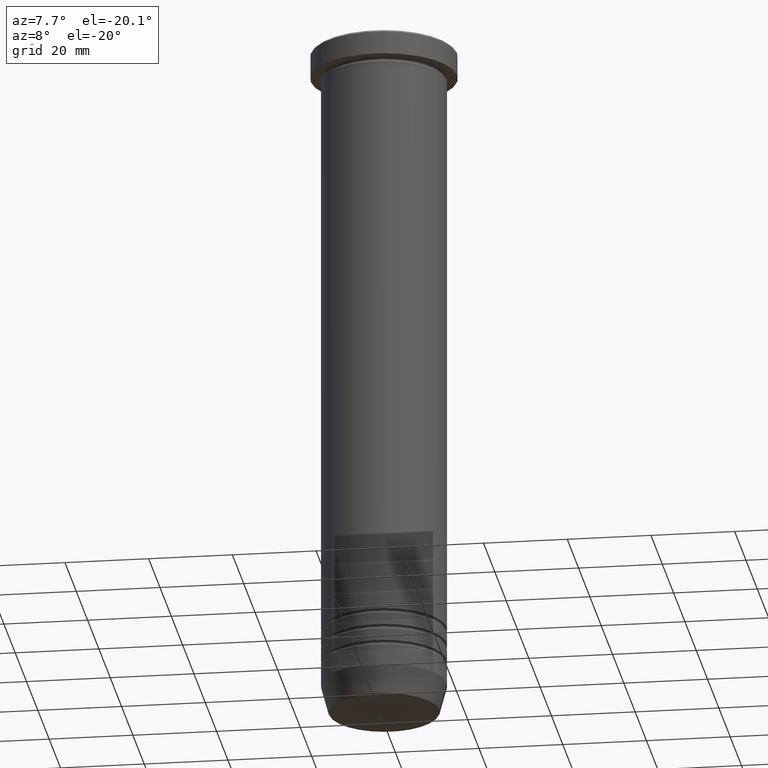
[diagram: clean part render]
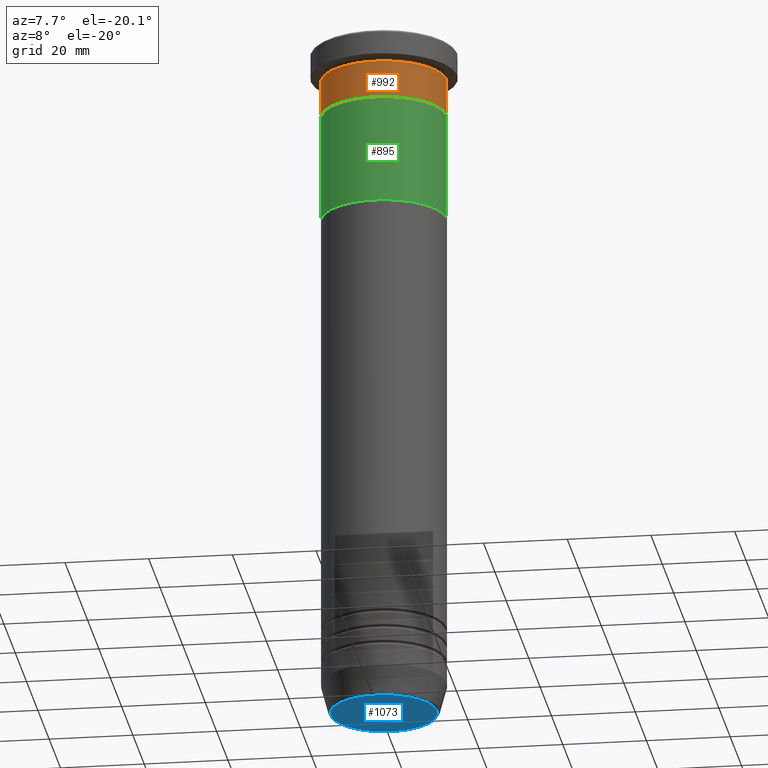
[diagram: same view with three faces highlighted in distinct colors, each labeled with its STEP entity id]
A machine part, auxiliary view with three faces highlighted in distinct colors.
Their STEP definitions:

[orange] entity #992 — the highlighted cylindrical surface (partial cylindrical patch) has radius 15 mm, axis along (-0, -0, 1).
#8 = CIRCLE ( 'NONE', #172, 15.00000000000000000 ) ;
#45 = CARTESIAN_POINT ( 'NONE',  ( 15.00000000000000000, 0.000000000000000000, -16.00000000000000000 ) ) ;
#76 = CYLINDRICAL_SURFACE ( 'NONE', #350, 15.00000000000000000 ) ;
#81 = VERTEX_POINT ( 'NONE', #475 ) ;
#90 = ORIENTED_EDGE ( 'NONE', *, *, #140, .F. ) ;
#101 = CARTESIAN_POINT ( 'NONE',  ( -15.00000000000000000, 1.836970198721029589E-15, -16.00000000000000000 ) ) ;
#107 = EDGE_CURVE ( 'NONE', #81, #1004, #418, .T. ) ;
#140 = EDGE_CURVE ( 'NONE', #376, #81, #848, .T. ) ;
#172 = AXIS2_PLACEMENT_3D ( 'NONE', #700, #795, #881 ) ;
#196 = EDGE_CURVE ( 'NONE', #405, #1004, #1115, .T. ) ;
#214 = DIRECTION ( 'NONE',  ( 1.000000000000000000, 0.000000000000000000, 0.000000000000000000 ) ) ;
#267 = VECTOR ( 'NONE', #352, 1000.000000000000000 ) ;
#350 = AXIS2_PLACEMENT_3D ( 'NONE', #788, #1137, #609 ) ;
#352 = DIRECTION ( 'NONE',  ( -0.000000000000000000, -0.000000000000000000, 1.000000000000000000 ) ) ;
#376 = VERTEX_POINT ( 'NONE', #101 ) ;
#400 = CARTESIAN_POINT ( 'NONE',  ( 0.000000000000000000, 0.000000000000000000, -6.999999999999999112 ) ) ;
#405 = VERTEX_POINT ( 'NONE', #45 ) ;
#418 = CIRCLE ( 'NONE', #842, 15.00000000000000000 ) ;
#436 = ORIENTED_EDGE ( 'NONE', *, *, #107, .F. ) ;
#475 = CARTESIAN_POINT ( 'NONE',  ( -15.00000000000000000, 1.836970198721029589E-15, -6.999999999999999112 ) ) ;
#530 = CARTESIAN_POINT ( 'NONE',  ( -15.00000000000000000, 1.836970198721029589E-15, 0.000000000000000000 ) ) ;
#541 = VECTOR ( 'NONE', #942, 1000.000000000000000 ) ;
#609 = DIRECTION ( 'NONE',  ( 1.000000000000000000, 0.000000000000000000, 0.000000000000000000 ) ) ;
#626 = ORIENTED_EDGE ( 'NONE', *, *, #196, .T. ) ;
#643 = DIRECTION ( 'NONE',  ( -0.000000000000000000, -0.000000000000000000, 1.000000000000000000 ) ) ;
#700 = CARTESIAN_POINT ( 'NONE',  ( 0.000000000000000000, 0.000000000000000000, -16.00000000000000000 ) ) ;
#723 = ORIENTED_EDGE ( 'NONE', *, *, #919, .T. ) ;
#729 = CARTESIAN_POINT ( 'NONE',  ( 15.00000000000000000, 0.000000000000000000, -6.999999999999999112 ) ) ;
#788 = CARTESIAN_POINT ( 'NONE',  ( 0.000000000000000000, 0.000000000000000000, 0.000000000000000000 ) ) ;
#795 = DIRECTION ( 'NONE',  ( -0.000000000000000000, -0.000000000000000000, 1.000000000000000000 ) ) ;
#842 = AXIS2_PLACEMENT_3D ( 'NONE', #400, #643, #214 ) ;
#848 = LINE ( 'NONE', #530, #541 ) ;
#870 = FACE_OUTER_BOUND ( 'NONE', #971, .T. ) ;
#881 = DIRECTION ( 'NONE',  ( 1.000000000000000000, 0.000000000000000000, 0.000000000000000000 ) ) ;
#919 = EDGE_CURVE ( 'NONE', #376, #405, #8, .T. ) ;
#942 = DIRECTION ( 'NONE',  ( -0.000000000000000000, -0.000000000000000000, 1.000000000000000000 ) ) ;
#971 = EDGE_LOOP ( 'NONE', ( #90, #723, #626, #436 ) ) ;
#992 = ADVANCED_FACE ( 'NONE', ( #870 ), #76, .T. ) ;
#1004 = VERTEX_POINT ( 'NONE', #729 ) ;
#1042 = CARTESIAN_POINT ( 'NONE',  ( 15.00000000000000000, 0.000000000000000000, 0.000000000000000000 ) ) ;
#1115 = LINE ( 'NONE', #1042, #267 ) ;
#1137 = DIRECTION ( 'NONE',  ( -0.000000000000000000, -0.000000000000000000, 1.000000000000000000 ) ) ;

[blue] entity #1073 — the highlighted planar face has unit normal (0, -0, 1).
#82 = CIRCLE ( 'NONE', #349, 12.74069215899265473 ) ;
#96 = AXIS2_PLACEMENT_3D ( 'NONE', #571, #1118, #144 ) ;
#144 = DIRECTION ( 'NONE',  ( 1.000000000000000000, 0.000000000000000000, 0.000000000000000000 ) ) ;
#163 = VERTEX_POINT ( 'NONE', #582 ) ;
#210 = AXIS2_PLACEMENT_3D ( 'NONE', #1094, #651, #1010 ) ;
#251 = CARTESIAN_POINT ( 'NONE',  ( 12.74069215899265473, 0.000000000000000000, -165.9999999999999716 ) ) ;
#300 = EDGE_CURVE ( 'NONE', #726, #163, #454, .T. ) ;
#349 = AXIS2_PLACEMENT_3D ( 'NONE', #464, #377, #733 ) ;
#377 = DIRECTION ( 'NONE',  ( 0.000000000000000000, 0.000000000000000000, -1.000000000000000000 ) ) ;
#387 = EDGE_CURVE ( 'NONE', #163, #726, #82, .T. ) ;
#454 = CIRCLE ( 'NONE', #96, 12.74069215899265473 ) ;
#464 = CARTESIAN_POINT ( 'NONE',  ( 0.000000000000000000, 0.000000000000000000, -165.9999999999999716 ) ) ;
#474 = FACE_OUTER_BOUND ( 'NONE', #903, .T. ) ;
#571 = CARTESIAN_POINT ( 'NONE',  ( 0.000000000000000000, 0.000000000000000000, -165.9999999999999716 ) ) ;
#582 = CARTESIAN_POINT ( 'NONE',  ( -12.74069215899265473, 1.589857736427680640E-15, -165.9999999999999716 ) ) ;
#651 = DIRECTION ( 'NONE',  ( 0.000000000000000000, -0.000000000000000000, 1.000000000000000000 ) ) ;
#726 = VERTEX_POINT ( 'NONE', #251 ) ;
#733 = DIRECTION ( 'NONE',  ( 1.000000000000000000, 0.000000000000000000, 0.000000000000000000 ) ) ;
#742 = PLANE ( 'NONE',  #210 ) ;
#903 = EDGE_LOOP ( 'NONE', ( #1076, #943 ) ) ;
#943 = ORIENTED_EDGE ( 'NONE', *, *, #387, .T. ) ;
#1010 = DIRECTION ( 'NONE',  ( 1.000000000000000000, 0.000000000000000000, 0.000000000000000000 ) ) ;
#1073 = ADVANCED_FACE ( 'NONE', ( #474 ), #742, .F. ) ;
#1076 = ORIENTED_EDGE ( 'NONE', *, *, #300, .T. ) ;
#1094 = CARTESIAN_POINT ( 'NONE',  ( 0.000000000000000000, 1.304248841091930906E-14, -165.9999999999999716 ) ) ;
#1118 = DIRECTION ( 'NONE',  ( 0.000000000000000000, 0.000000000000000000, -1.000000000000000000 ) ) ;

[green] entity #895 — the highlighted cylindrical surface (partial cylindrical patch) has radius 15 mm, axis along (-0, -0, 1).
#58 = DIRECTION ( 'NONE',  ( 0.000000000000000000, 0.000000000000000000, -1.000000000000000000 ) ) ;
#83 = AXIS2_PLACEMENT_3D ( 'NONE', #162, #180, #874 ) ;
#95 = CARTESIAN_POINT ( 'NONE',  ( -15.00000000000000000, 1.836970198721029194E-15, -41.99999999999999289 ) ) ;
#105 = ORIENTED_EDGE ( 'NONE', *, *, #550, .T. ) ;
#161 = EDGE_CURVE ( 'NONE', #995, #280, #1057, .T. ) ;
#162 = CARTESIAN_POINT ( 'NONE',  ( 0.000000000000000000, 0.000000000000000000, -41.99999999999999289 ) ) ;
#173 = CARTESIAN_POINT ( 'NONE',  ( 0.000000000000000000, 0.000000000000000000, -16.00000000000000000 ) ) ;
#178 = CARTESIAN_POINT ( 'NONE',  ( 15.00000000000000000, 0.000000000000000000, -41.99999999999999289 ) ) ;
#180 = DIRECTION ( 'NONE',  ( -0.000000000000000000, -0.000000000000000000, 1.000000000000000000 ) ) ;
#255 = CYLINDRICAL_SURFACE ( 'NONE', #83, 15.00000000000000000 ) ;
#280 = VERTEX_POINT ( 'NONE', #535 ) ;
#380 = AXIS2_PLACEMENT_3D ( 'NONE', #1032, #58, #401 ) ;
#401 = DIRECTION ( 'NONE',  ( -1.000000000000000000, 0.000000000000000000, 0.000000000000000000 ) ) ;
#505 = CARTESIAN_POINT ( 'NONE',  ( -15.00000000000000000, 1.836970198721029194E-15, -41.99999999999999289 ) ) ;
#521 = DIRECTION ( 'NONE',  ( 0.000000000000000000, 0.000000000000000000, -1.000000000000000000 ) ) ;
#535 = CARTESIAN_POINT ( 'NONE',  ( -15.00000000000000000, 1.836970198721029194E-15, -16.00000000000000000 ) ) ;
#542 = VECTOR ( 'NONE', #821, 1000.000000000000000 ) ;
#549 = EDGE_CURVE ( 'NONE', #827, #280, #814, .T. ) ;
#550 = EDGE_CURVE ( 'NONE', #1099, #995, #621, .T. ) ;
#578 = AXIS2_PLACEMENT_3D ( 'NONE', #173, #521, #892 ) ;
#598 = ORIENTED_EDGE ( 'NONE', *, *, #161, .T. ) ;
#621 = LINE ( 'NONE', #178, #829 ) ;
#642 = CARTESIAN_POINT ( 'NONE',  ( 15.00000000000000000, 0.000000000000000000, -16.00000000000000000 ) ) ;
#782 = ORIENTED_EDGE ( 'NONE', *, *, #549, .F. ) ;
#796 = CIRCLE ( 'NONE', #380, 15.00000000000000000 ) ;
#814 = LINE ( 'NONE', #95, #542 ) ;
#819 = EDGE_CURVE ( 'NONE', #1099, #827, #796, .T. ) ;
#821 = DIRECTION ( 'NONE',  ( -0.000000000000000000, -0.000000000000000000, 1.000000000000000000 ) ) ;
#827 = VERTEX_POINT ( 'NONE', #505 ) ;
#829 = VECTOR ( 'NONE', #1081, 1000.000000000000000 ) ;
#851 = EDGE_LOOP ( 'NONE', ( #782, #963, #105, #598 ) ) ;
#874 = DIRECTION ( 'NONE',  ( 1.000000000000000000, 0.000000000000000000, 0.000000000000000000 ) ) ;
#892 = DIRECTION ( 'NONE',  ( -1.000000000000000000, 0.000000000000000000, 0.000000000000000000 ) ) ;
#895 = ADVANCED_FACE ( 'NONE', ( #977 ), #255, .T. ) ;
#963 = ORIENTED_EDGE ( 'NONE', *, *, #819, .F. ) ;
#977 = FACE_OUTER_BOUND ( 'NONE', #851, .T. ) ;
#995 = VERTEX_POINT ( 'NONE', #642 ) ;
#1032 = CARTESIAN_POINT ( 'NONE',  ( 0.000000000000000000, 0.000000000000000000, -41.99999999999999289 ) ) ;
#1057 = CIRCLE ( 'NONE', #578, 15.00000000000000000 ) ;
#1081 = DIRECTION ( 'NONE',  ( -0.000000000000000000, -0.000000000000000000, 1.000000000000000000 ) ) ;
#1099 = VERTEX_POINT ( 'NONE', #1101 ) ;
#1101 = CARTESIAN_POINT ( 'NONE',  ( 15.00000000000000000, 0.000000000000000000, -41.99999999999999289 ) ) ;